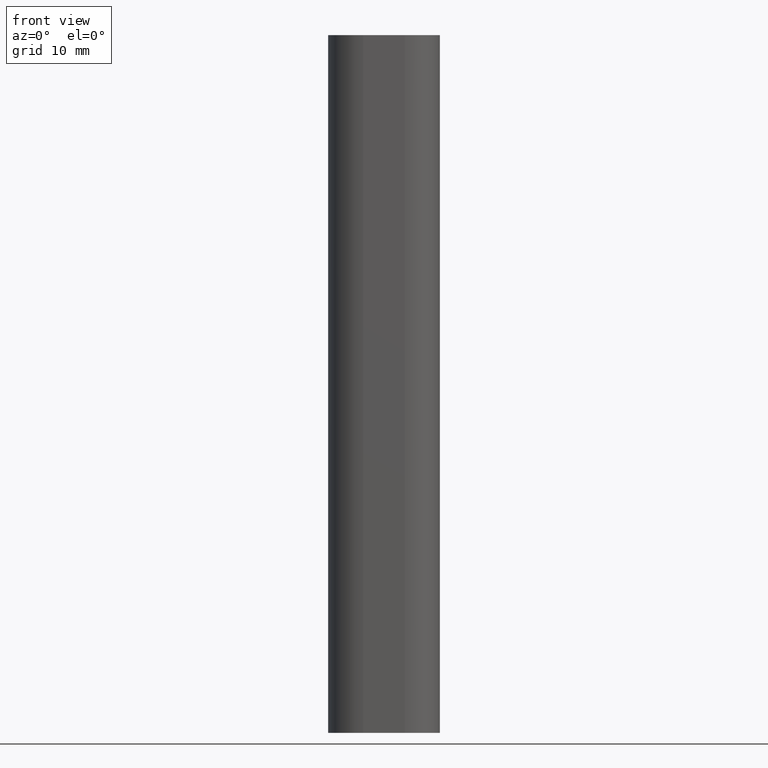
[diagram: clean part render]
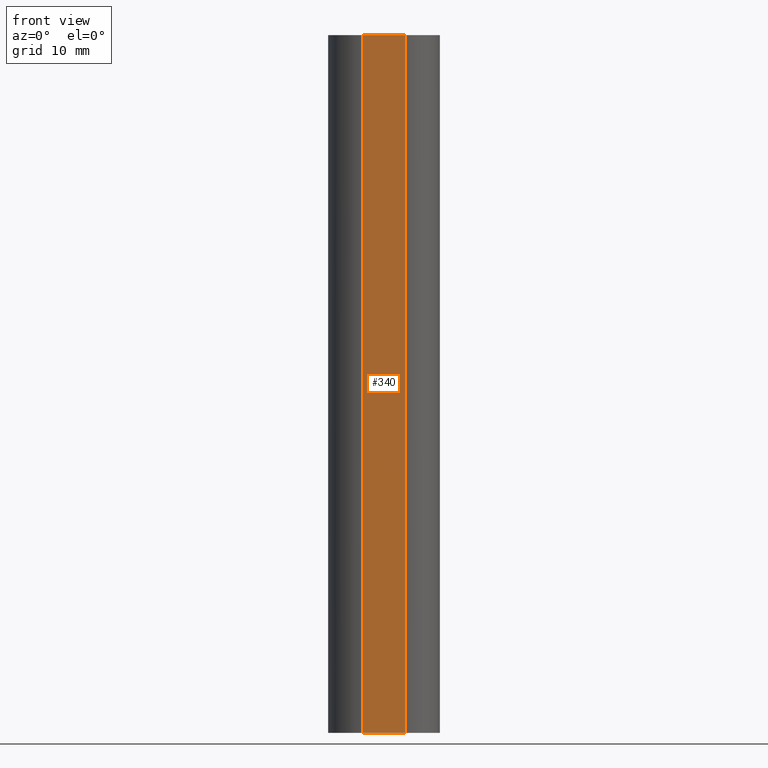
[diagram: same view with one face highlighted and labeled with its STEP entity id]
A machine part, front view. The second image highlights one B-rep face of the part: STEP entity #340.
In plain terms, the highlighted planar face has unit normal (0, -1, 0).
Its self-contained STEP definition (entity closure, byte-faithful):
#20=PLANE('',#364);
#36=FACE_OUTER_BOUND('',#54,.T.);
#54=EDGE_LOOP('',(#261,#262,#263,#264));
#82=LINE('',#518,#122);
#83=LINE('',#521,#123);
#84=LINE('',#523,#124);
#85=LINE('',#524,#125);
#122=VECTOR('',#420,100.);
#123=VECTOR('',#423,6.);
#124=VECTOR('',#424,6.);
#125=VECTOR('',#425,100.);
#167=VERTEX_POINT('',#514);
#168=VERTEX_POINT('',#516);
#169=VERTEX_POINT('',#520);
#170=VERTEX_POINT('',#522);
#206=EDGE_CURVE('',#167,#168,#82,.T.);
#207=EDGE_CURVE('',#167,#169,#83,.T.);
#208=EDGE_CURVE('',#170,#168,#84,.T.);
#209=EDGE_CURVE('',#169,#170,#85,.T.);
#261=ORIENTED_EDGE('',*,*,#207,.F.);
#262=ORIENTED_EDGE('',*,*,#206,.T.);
#263=ORIENTED_EDGE('',*,*,#208,.F.);
#264=ORIENTED_EDGE('',*,*,#209,.F.);
#340=ADVANCED_FACE('',(#36),#20,.T.);
#364=AXIS2_PLACEMENT_3D('',#519,#421,#422);
#420=DIRECTION('',(0.,0.,1.));
#421=DIRECTION('center_axis',(0.,-1.,0.));
#422=DIRECTION('ref_axis',(1.,0.,0.));
#423=DIRECTION('',(-1.,0.,0.));
#424=DIRECTION('',(1.,0.,0.));
#425=DIRECTION('',(0.,0.,1.));
#514=CARTESIAN_POINT('',(3.,-13.5,0.));
#516=CARTESIAN_POINT('',(3.,-13.5,100.));
#518=CARTESIAN_POINT('',(3.,-13.5,0.));
#519=CARTESIAN_POINT('Origin',(-3.,-13.5,0.));
#520=CARTESIAN_POINT('',(-3.,-13.5,0.));
#521=CARTESIAN_POINT('',(3.,-13.5,0.));
#522=CARTESIAN_POINT('',(-3.,-13.5,100.));
#523=CARTESIAN_POINT('',(3.,-13.5,100.));
#524=CARTESIAN_POINT('',(-3.,-13.5,0.));